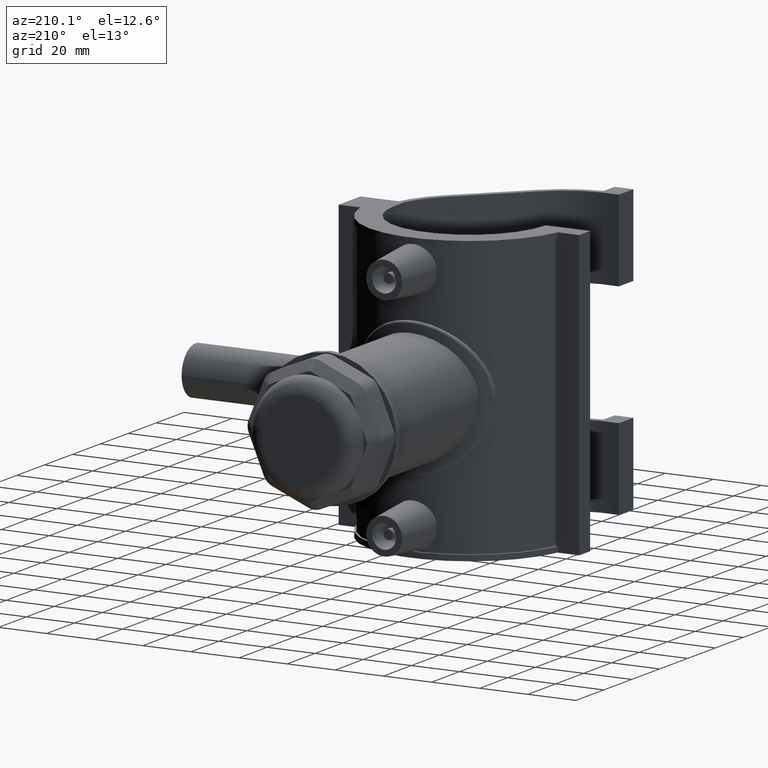
[diagram: clean part render]
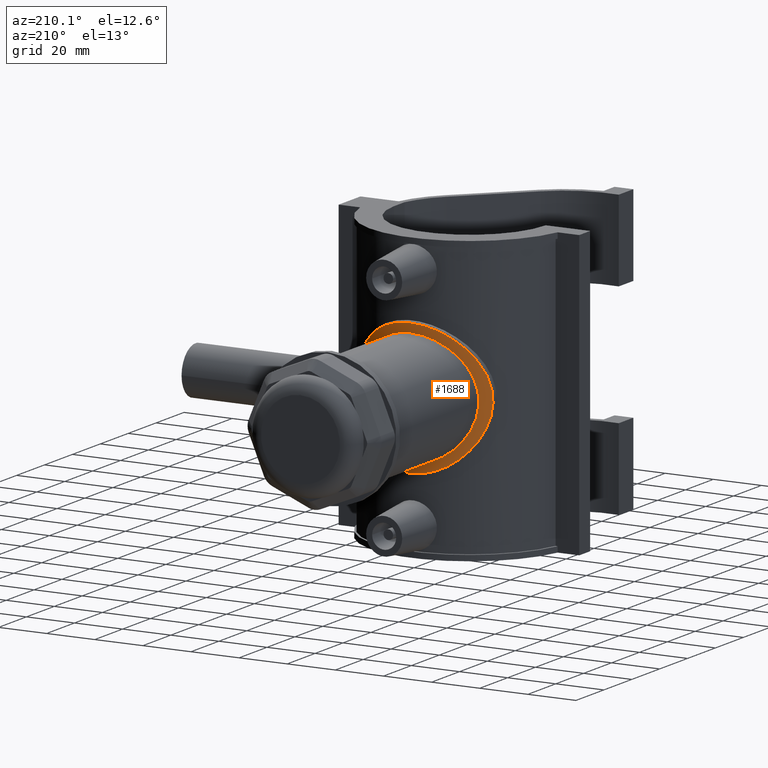
[diagram: same view with one face highlighted and labeled with its STEP entity id]
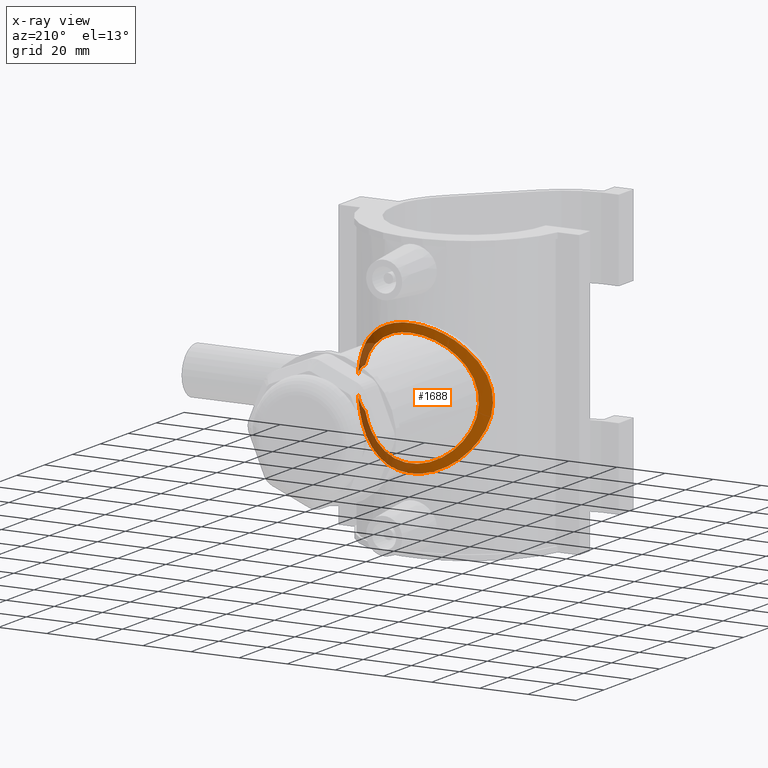
[diagram: x-ray of the same camera — body ghosted, the highlighted face saturated]
A machine part, auxiliary view. The second image highlights one B-rep face of the part: STEP entity #1688.
The next image is the same camera in x-ray: the body ghosted, the highlighted face saturated — about 21% of this face is hidden behind the body in this view.
In plain terms, the highlighted cylindrical surface (partial cylindrical patch) has radius 42.588 mm, axis along (0, 0, -1).
Its self-contained STEP definition (entity closure, byte-faithful):
#528=FACE_OUTER_BOUND('',#643,.T.);
#643=EDGE_LOOP('',(#1363,#1364,#1365,#1366));
#714=B_SPLINE_CURVE_WITH_KNOTS('',3,(#2539,#2540,#2541,#2542,#2543,#2544,
#2545,#2546),.UNSPECIFIED.,.F.,.F.,(4,2,2,4),(2.6953214263511,2.99223385314256,
3.4071353460246,3.51488436503464),.UNSPECIFIED.);
#717=B_SPLINE_CURVE_WITH_KNOTS('',3,(#2584,#2585,#2586,#2587,#2588,#2589,
#2590,#2591),.UNSPECIFIED.,.F.,.F.,(4,2,2,4),(1.1369554596361,1.24470447864614,
1.65960597152818,1.95651839831435),.UNSPECIFIED.);
#719=B_SPLINE_CURVE_WITH_KNOTS('',3,(#2621,#2622,#2623,#2624,#2625,#2626,
#2627,#2628,#2629,#2630,#2631,#2632,#2633,#2634,#2635,#2636,#2637,#2638,
#2639,#2640,#2641,#2642,#2643,#2644,#2645,#2646,#2647,#2648,#2649,#2650,
#2651,#2652,#2653,#2654,#2655,#2656,#2657,#2658,#2659,#2660,#2661,#2662,
#2663,#2664,#2665,#2666,#2667,#2668,#2669,#2670,#2671,#2672,#2673,#2674,
#2675,#2676,#2677,#2678,#2679,#2680,#2681,#2682),.UNSPECIFIED.,.F.,.F.,
(4,2,2,2,2,2,2,2,2,2,2,2,2,2,2,2,2,2,2,2,2,2,2,2,2,2,2,2,2,2,4),(0.840917610383892,
0.934854853196402,1.4022822797946,1.8697097063928,2.33486709925147,2.80002449211013,
3.26518188496879,3.73033927782745,4.19549667068612,4.66065406354478,5.12581145640344,
5.59096884926211,6.05839627586031,6.52582370245851,6.99325112905671,7.46067855565491,
7.92810598225311,8.39553340885131,8.86296083544951,9.33038826204771,9.79554565490638,
10.260703047765,10.7258604406237,11.1910178334824,11.656175226341,12.1213326191997,
12.5864900120584,13.051647404917,13.5190748315152,13.9865022581134,14.0804395009259),
 .UNSPECIFIED.);
#728=B_SPLINE_CURVE_WITH_KNOTS('',3,(#2985,#2986,#2987,#2988,#2989,#2990,
#2991,#2992,#2993,#2994,#2995,#2996,#2997,#2998,#2999,#3000,#3001,#3002,
#3003,#3004,#3005,#3006,#3007,#3008,#3009),.UNSPECIFIED.,.F.,.F.,(4,1,1,
1,1,1,1,1,1,1,1,1,1,1,1,1,1,1,1,1,1,1,4),(9.25784063166012,9.53276129906932,
10.1682787190073,11.4393135588832,12.2866701188005,13.1340266787178,13.981383238635,
14.8287397985523,15.6760963584696,16.5234529183869,17.3708094783042,18.2181660382214,
19.0655225981387,19.912879158056,20.7602357179733,21.6075922778906,22.2431096978285,
22.8786271177665,23.5141445377044,24.1496619576424,25.4206967975183,26.0562142174563,
26.3320742872995),.UNSPECIFIED.);
#738=VERTEX_POINT('',#2537);
#739=VERTEX_POINT('',#2538);
#741=VERTEX_POINT('',#2566);
#742=VERTEX_POINT('',#2583);
#898=EDGE_CURVE('',#738,#739,#714,.T.);
#901=EDGE_CURVE('',#742,#741,#717,.T.);
#903=EDGE_CURVE('',#739,#742,#719,.T.);
#1012=EDGE_CURVE('',#738,#741,#728,.T.);
#1363=ORIENTED_EDGE('',*,*,#898,.T.);
#1364=ORIENTED_EDGE('',*,*,#903,.T.);
#1365=ORIENTED_EDGE('',*,*,#901,.T.);
#1366=ORIENTED_EDGE('',*,*,#1012,.F.);
#1620=CYLINDRICAL_SURFACE('',#1835,42.588);
#1688=ADVANCED_FACE('',(#528),#1620,.T.);
#1835=AXIS2_PLACEMENT_3D('',#2984,#2169,#2170);
#2169=DIRECTION('center_axis',(0.,0.,-1.));
#2170=DIRECTION('ref_axis',(1.,0.,0.));
#2537=CARTESIAN_POINT('',(27.8940892062413,32.1816334475778,3.62878006976187));
#2538=CARTESIAN_POINT('',(22.5772091261817,36.1110422457267,8.42372449232865));
#2539=CARTESIAN_POINT('Ctrl Pts',(27.8940892062411,32.1816334475779,3.62878006976178));
#2540=CARTESIAN_POINT('Ctrl Pts',(27.4913798402836,32.5306900296965,4.52512460351329));
#2541=CARTESIAN_POINT('Ctrl Pts',(26.9395014132135,32.9936047097587,5.31644204878545));
#2542=CARTESIAN_POINT('Ctrl Pts',(25.5086707603174,34.1199656057952,6.837560737836));
#2543=CARTESIAN_POINT('Ctrl Pts',(24.5297050575093,34.8385180067351,7.51114498722243));
#2544=CARTESIAN_POINT('Ctrl Pts',(23.1621436021298,35.7402699399824,8.17795620432497));
#2545=CARTESIAN_POINT('Ctrl Pts',(22.8729725056315,35.9261261853077,8.30542707666742));
#2546=CARTESIAN_POINT('Ctrl Pts',(22.5772091261817,36.1110422457267,8.42372449232866));
#2566=CARTESIAN_POINT('',(27.8940892062334,32.1816334475916,-3.62878006981781));
#2583=CARTESIAN_POINT('',(22.5772091261817,36.1110422457267,-8.42372449232866));
#2584=CARTESIAN_POINT('Ctrl Pts',(22.5772091261817,36.1110422457267,-8.42372449232866));
#2585=CARTESIAN_POINT('Ctrl Pts',(22.8729725056315,35.9261261853077,-8.30542707666742));
#2586=CARTESIAN_POINT('Ctrl Pts',(23.1621436021298,35.7402699399824,-8.17795620432498));
#2587=CARTESIAN_POINT('Ctrl Pts',(24.5297050575093,34.8385180067351,-7.51114498722244));
#2588=CARTESIAN_POINT('Ctrl Pts',(25.5086707603174,34.1199656057952,-6.83756073783601));
#2589=CARTESIAN_POINT('Ctrl Pts',(26.9395014132029,32.9936047097671,-5.31644204879676));
#2590=CARTESIAN_POINT('Ctrl Pts',(27.4913798402642,32.5306900297129,-4.52512460354167));
#2591=CARTESIAN_POINT('Ctrl Pts',(27.8940892062196,32.1816334475965,-3.62878006980968));
#2621=CARTESIAN_POINT('Ctrl Pts',(22.5772091261817,36.1110422457267,8.42372449232865));
#2622=CARTESIAN_POINT('Ctrl Pts',(22.4644899866801,36.1815160794016,8.7258335638408));
#2623=CARTESIAN_POINT('Ctrl Pts',(22.3458089404185,36.2549839313588,9.02539748747982));
#2624=CARTESIAN_POINT('Ctrl Pts',(21.6021264748118,36.7098449273669,10.7981506953116));
#2625=CARTESIAN_POINT('Ctrl Pts',(20.8375351391181,37.1553683673285,12.2040580523041));
#2626=CARTESIAN_POINT('Ctrl Pts',(19.0827426650367,38.0863912880591,14.7983389716474));
#2627=CARTESIAN_POINT('Ctrl Pts',(18.0922242750434,38.5710849883383,15.9867870442423));
#2628=CARTESIAN_POINT('Ctrl Pts',(15.9918995101337,39.4880177026072,18.0871118091519));
#2629=CARTESIAN_POINT('Ctrl Pts',(14.8060543165203,39.9548556659798,19.0768300662387));
#2630=CARTESIAN_POINT('Ctrl Pts',(12.210942562453,40.8228198120974,20.8335683863143));
#2631=CARTESIAN_POINT('Ctrl Pts',(10.8015634843601,41.2233446248684,21.6007193019572));
#2632=CARTESIAN_POINT('Ctrl Pts',(7.84185048184334,41.8872689674086,22.8422907298216));
#2633=CARTESIAN_POINT('Ctrl Pts',(6.28857206319791,42.1508725513636,23.3177104381649));
#2634=CARTESIAN_POINT('Ctrl Pts',(3.14294387507803,42.5013423228265,23.9454309312579));
#2635=CARTESIAN_POINT('Ctrl Pts',(1.55052464286221,42.588,24.0975));
#2636=CARTESIAN_POINT('Ctrl Pts',(-1.55052464286221,42.588,24.0975));
#2637=CARTESIAN_POINT('Ctrl Pts',(-3.14294387507803,42.5013423228265,23.9454309312579));
#2638=CARTESIAN_POINT('Ctrl Pts',(-6.28857206319791,42.1508725513636,23.3177104381649));
#2639=CARTESIAN_POINT('Ctrl Pts',(-7.84185048184334,41.8872689674086,22.8422907298216));
#2640=CARTESIAN_POINT('Ctrl Pts',(-10.8015634843601,41.2233446248684,21.6007193019572));
#2641=CARTESIAN_POINT('Ctrl Pts',(-12.210942562453,40.8228198120974,20.8335683863143));
#2642=CARTESIAN_POINT('Ctrl Pts',(-14.8060543165203,39.9548556659798,19.0768300662387));
#2643=CARTESIAN_POINT('Ctrl Pts',(-15.9918995101337,39.4880177026072,18.0871118091519));
#2644=CARTESIAN_POINT('Ctrl Pts',(-18.0922242750434,38.5710849883383,15.9867870442423));
#2645=CARTESIAN_POINT('Ctrl Pts',(-19.0827426650367,38.0863912880591,14.7983389716474));
#2646=CARTESIAN_POINT('Ctrl Pts',(-20.8375351391181,37.1553683673285,12.2040580523041));
#2647=CARTESIAN_POINT('Ctrl Pts',(-21.6021264748118,36.7098449273669,10.7981506953116));
#2648=CARTESIAN_POINT('Ctrl Pts',(-22.8405997883164,35.9523533486854,7.84593971701696));
#2649=CARTESIAN_POINT('Ctrl Pts',(-23.3154799907044,35.640831350445,6.29663471280116));
#2650=CARTESIAN_POINT('Ctrl Pts',(-23.9440820764734,35.2216041793797,3.15280009667629));
#2651=CARTESIAN_POINT('Ctrl Pts',(-24.0975,35.1147865969594,1.558091421994));
#2652=CARTESIAN_POINT('Ctrl Pts',(-24.0975,35.1147865969594,-1.558091421994));
#2653=CARTESIAN_POINT('Ctrl Pts',(-23.9440820764734,35.2216041793797,-3.15280009667628));
#2654=CARTESIAN_POINT('Ctrl Pts',(-23.3154799907044,35.640831350445,-6.29663471280115));
#2655=CARTESIAN_POINT('Ctrl Pts',(-22.8405997883164,35.9523533486854,-7.84593971701695));
#2656=CARTESIAN_POINT('Ctrl Pts',(-21.6021264748118,36.7098449273669,-10.7981506953116));
#2657=CARTESIAN_POINT('Ctrl Pts',(-20.8375351391181,37.1553683673285,-12.2040580523041));
#2658=CARTESIAN_POINT('Ctrl Pts',(-19.0827426650367,38.0863912880591,-14.7983389716474));
#2659=CARTESIAN_POINT('Ctrl Pts',(-18.0922242750434,38.5710849883383,-15.9867870442423));
#2660=CARTESIAN_POINT('Ctrl Pts',(-15.9918995101337,39.4880177026072,-18.0871118091519));
#2661=CARTESIAN_POINT('Ctrl Pts',(-14.8060543165203,39.9548556659798,-19.0768300662387));
#2662=CARTESIAN_POINT('Ctrl Pts',(-12.210942562453,40.8228198120974,-20.8335683863143));
#2663=CARTESIAN_POINT('Ctrl Pts',(-10.8015634843601,41.2233446248684,-21.6007193019572));
#2664=CARTESIAN_POINT('Ctrl Pts',(-7.84185048184334,41.8872689674086,-22.8422907298216));
#2665=CARTESIAN_POINT('Ctrl Pts',(-6.28857206319791,42.1508725513636,-23.3177104381649));
#2666=CARTESIAN_POINT('Ctrl Pts',(-3.14294387507804,42.5013423228265,-23.9454309312579));
#2667=CARTESIAN_POINT('Ctrl Pts',(-1.55052464286221,42.588,-24.0975));
#2668=CARTESIAN_POINT('Ctrl Pts',(1.55052464286221,42.588,-24.0975));
#2669=CARTESIAN_POINT('Ctrl Pts',(3.14294387507803,42.5013423228265,-23.9454309312579));
#2670=CARTESIAN_POINT('Ctrl Pts',(6.2885720631979,42.1508725513636,-23.3177104381649));
#2671=CARTESIAN_POINT('Ctrl Pts',(7.84185048184333,41.8872689674086,-22.8422907298216));
#2672=CARTESIAN_POINT('Ctrl Pts',(10.8015634843601,41.2233446248684,-21.6007193019572));
#2673=CARTESIAN_POINT('Ctrl Pts',(12.210942562453,40.8228198120974,-20.8335683863143));
#2674=CARTESIAN_POINT('Ctrl Pts',(14.8060543165203,39.9548556659798,-19.0768300662387));
#2675=CARTESIAN_POINT('Ctrl Pts',(15.9918995101337,39.4880177026072,-18.0871118091519));
#2676=CARTESIAN_POINT('Ctrl Pts',(18.0922242750434,38.5710849883383,-15.9867870442423));
#2677=CARTESIAN_POINT('Ctrl Pts',(19.0827426650366,38.0863912880591,-14.7983389716474));
#2678=CARTESIAN_POINT('Ctrl Pts',(20.8375351391181,37.1553683673285,-12.2040580523041));
#2679=CARTESIAN_POINT('Ctrl Pts',(21.6021264748118,36.7098449273669,-10.7981506953116));
#2680=CARTESIAN_POINT('Ctrl Pts',(22.3458089404185,36.2549839313587,-9.02539748747981));
#2681=CARTESIAN_POINT('Ctrl Pts',(22.4644899866801,36.1815160794016,-8.7258335638408));
#2682=CARTESIAN_POINT('Ctrl Pts',(22.5772091261817,36.1110422457267,-8.42372449232866));
#2984=CARTESIAN_POINT('Origin',(0.,0.,59.));
#2985=CARTESIAN_POINT('Ctrl Pts',(27.8943093154117,32.1818868163543,3.62878018334892));
#2986=CARTESIAN_POINT('Ctrl Pts',(27.7719077151578,32.2878260984689,4.5435108040889));
#2987=CARTESIAN_POINT('Ctrl Pts',(27.2161264292227,32.7636552552435,7.53995698552548));
#2988=CARTESIAN_POINT('Ctrl Pts',(24.7430585089799,34.787328202264,14.2607801842366));
#2989=CARTESIAN_POINT('Ctrl Pts',(19.1591296472585,38.394559788108,21.136940108955));
#2990=CARTESIAN_POINT('Ctrl Pts',(10.7431471195711,41.4814852026459,26.0805153518816));
#2991=CARTESIAN_POINT('Ctrl Pts',(2.23260403643282,42.8378753906238,28.0874378673809));
#2992=CARTESIAN_POINT('Ctrl Pts',(-6.59523313739002,42.3681045847311,27.4031101474449));
#2993=CARTESIAN_POINT('Ctrl Pts',(-14.5368881442616,40.2761808684413,24.2073315226029));
#2994=CARTESIAN_POINT('Ctrl Pts',(-20.9516582229145,37.2596890339352,19.0740253428895));
#2995=CARTESIAN_POINT('Ctrl Pts',(-25.6066488556709,34.1366813842786,12.4167195775056));
#2996=CARTESIAN_POINT('Ctrl Pts',(-28.2407802319717,31.88571203739,4.39295137981589));
#2997=CARTESIAN_POINT('Ctrl Pts',(-28.245542539161,31.8780005211967,-4.38431245139933));
#2998=CARTESIAN_POINT('Ctrl Pts',(-25.610006950191,34.1354376304957,-12.4083036980043));
#2999=CARTESIAN_POINT('Ctrl Pts',(-20.9580157344376,37.2549420954202,-19.0666325578082));
#3000=CARTESIAN_POINT('Ctrl Pts',(-14.5446323083112,40.2741193361394,-24.2040335240473));
#3001=CARTESIAN_POINT('Ctrl Pts',(-7.26590110386507,42.1905948164089,-27.131773893118));
#3002=CARTESIAN_POINT('Ctrl Pts',(-0.00332824960452913,42.7580834759438,
-27.9739521078885));
#3003=CARTESIAN_POINT('Ctrl Pts',(6.52639326380377,42.2494207628889,-27.2179235569527));
#3004=CARTESIAN_POINT('Ctrl Pts',(12.5758354955511,40.8316155795795,-25.0595839137332));
#3005=CARTESIAN_POINT('Ctrl Pts',(19.5796253475191,38.1228578159062,-20.6150728856315));
#3006=CARTESIAN_POINT('Ctrl Pts',(24.7395699874592,34.7896020371528,-14.2679076168425));
#3007=CARTESIAN_POINT('Ctrl Pts',(27.2145080509136,32.7650658283201,-7.54612853337378));
#3008=CARTESIAN_POINT('Ctrl Pts',(27.7713401922839,32.2883448979723,-4.54662935365193));
#3009=CARTESIAN_POINT('Ctrl Pts',(27.8941747743156,32.1820251877241,-3.62874655739701));